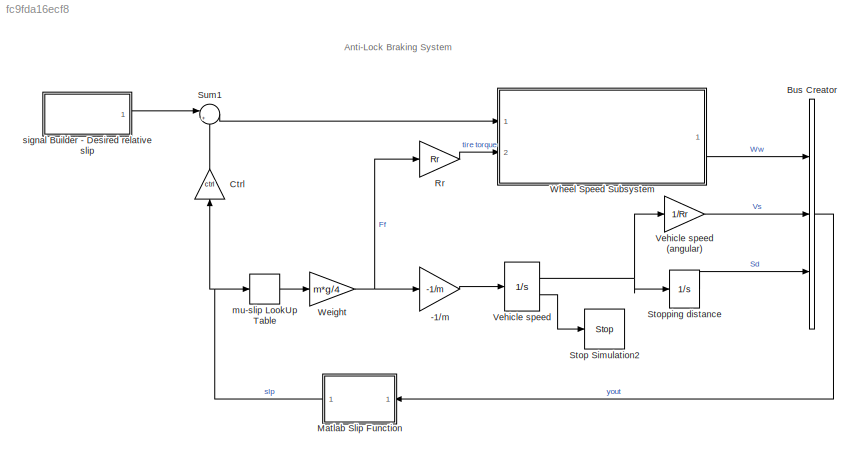
MODEL slx_fc9fda16ecf8
KIND model
CONFIG AbsTol = auto
CONFIG EnableMultiTasking = off
CONFIG FixedStep = auto
CONFIG InitFcn = g = 32.18;\nv0 = 88;\nRr = 15/12;\nKf = 1;\nm = 50;\nPBmax = 1500;\nTB = 0.01;\nI = 5;\nslip = (0:.05:1.0); \nmu = [0 .4 .8 .97 1.0 .98 .96 .94 .92 .9 .88 .855 .83 .81 .79 .77 .75 .73 .72 .71 .7];\nctrl = 1;
CONFIG MaxStep = auto
CONFIG MinStep = auto
CONFIG RelTol = 1e-3
CONFIG SampleTimeConstraint = Unconstrained
CONFIG SolverName = VariableStepAuto
CONFIG StartTime = 0.0
CONFIG StopTime = 25
BLOCK [Gain] -1//m
  Gain = -1/m
  OutDataTypeStr = Inherit: Same as input
  ParamDataTypeStr = Inherit: Same as input
  SaturateOnIntegerOverflow = on
BLOCK [BusCreator] Bus Creator
  DisplayOption = bar
  InheritFromInputs = on
  Inputs = 3
  Ports = [3, 1]
BLOCK [Gain] Ctrl
  Gain = ctrl
  NameLocation = left
  OutDataTypeStr = Inherit: Same as input
  ParamDataTypeStr = Inherit: Same as input
  SaturateOnIntegerOverflow = on
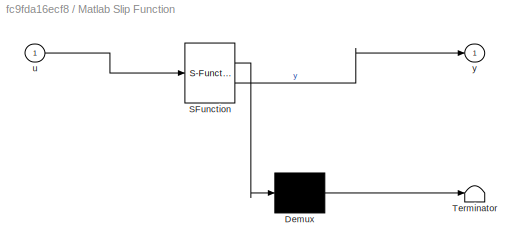
BLOCK [SubSystem] Matlab Slip Function
  ErrorFcn = Stateflow.Translate.translate
  NameLocation = top
  PermitHierarchicalResolution = ExplicitOnly
  Ports = [1, 1]
  RequestExecContextInheritance = off
  SFBlockType = MATLAB Function
  TreatAsAtomicUnit = on
BLOCK [Demux] Matlab Slip Function/ Demux 
  Outputs = 1
  Ports = [1, 1]
BLOCK [S-Function] Matlab Slip Function/ SFunction 
  EnableBusSupport = on
  FunctionName = sf_sfun
  PortCounts = [1 2]
  Ports = [1, 2]
  SFcnIsStateOwnerBlock = off
  SFunctionDeploymentMode = off
  Tag = Stateflow S-Function 2
BLOCK [Terminator] Matlab Slip Function/ Terminator 
BLOCK [Inport] Matlab Slip Function/u
BLOCK [Outport] Matlab Slip Function/y
BLOCK [Gain] Rr
  Gain = Rr
  OutDataTypeStr = Inherit: Same as input
  ParamDataTypeStr = Inherit: Same as input
  SaturateOnIntegerOverflow = on
BLOCK [Stop] Stop Simulation2
BLOCK [Integrator] Stopping distance
  LowerSaturationLimit = 0
  Ports = [1, 1]
  UpperSaturationLimit = 1000
BLOCK [Sum] Sum1
  InputSameDT = on
  Inputs = |+-
  OutDataTypeStr = Inherit: Same as first input
  Ports = [2, 1]
  SaturateOnIntegerOverflow = on
BLOCK [Integrator] Vehicle speed
  InitialCondition = v0
  LimitOutput = on
  LowerSaturationLimit = 0
  Ports = [1, 2]
  ShowSaturationPort = on
  UpperSaturationLimit = 1000
BLOCK [Gain] Vehicle speed (angular)
  Gain = 1/Rr
  OutDataTypeStr = Inherit: Same as input
  ParamDataTypeStr = Inherit: Same as input
  SaturateOnIntegerOverflow = on
BLOCK [Gain] Weight
  Gain = m*g/4
  OutDataTypeStr = Inherit: Same as input
  ParamDataTypeStr = Inherit: Same as input
  SaturateOnIntegerOverflow = on
BLOCK [ModelReference] Wheel Speed Subsystem
  ModelNameDialog = Wheel_Speed_Subsystem
  ModelReferenceVersion = 1.8
  Ports = [2, 1]
BLOCK [Lookup_n-D] mu-slip LookUp Table
  BreakpointsForDimension1 = [0:.05:1.0]
  InputPortMap = u0
  NumberOfTableDimensions = 1
  Ports = [1, 1]
  SaturateOnIntegerOverflow = on
  Table = [0 .4 .8 .97 1.0 .98 .96 .94 .92 .9 .88 .855 .83 .81 .79 .77 .75 .73 .72 .71 .7]
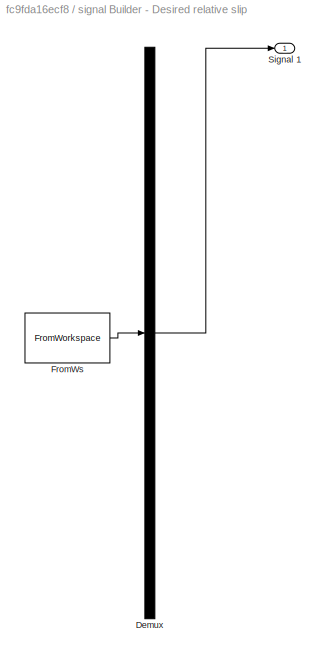
BLOCK [SubSystem] signal Builder - Desired relative slip
  ClipboardFcn = sigbuilder_block('clipboard');
  CloseFcn = sigbuilder_block('close');
  ContinueFcn = sigbuilder_block('continue');
  CopyFcn = sigbuilder_block('copy');
  DeleteFcn = sigbuilder_block('delete');
  LoadFcn = sigbuilder_block('load');
  MaskHideContents = on
  ModelCloseFcn = sigbuilder_block('modelClose');
  NameChangeFcn = sigbuilder_block('namechange');
  OpenFcn = sigbuilder_block('open',[387 76.5 544.5 355.5 ]);
  PauseFcn = sigbuilder_block('pause');
  Ports = [0, 1]
  PreSaveFcn = sigbuilder_block('preSave');
  RequestExecContextInheritance = off
  StartFcn = sigbuilder_block('start');
  StopFcn = sigbuilder_block('stop');
  Tag = STV Subsys
BLOCK [Demux] signal Builder - Desired relative slip/Demux
  DisplayOption = none
  Outputs = 1
  Ports = [1, 1]
  Tag = STV Demux
BLOCK [FromWorkspace] signal Builder - Desired relative slip/FromWs
  Tag = STV FromWs
  VariableName = tuvar
BLOCK [Outport] signal Builder - Desired relative slip/Signal 1
  Tag = STV Outport
ANNOTATION (root): Anti-Lock Braking System
LINE -1//m:1 -> Vehicle speed:1
LINE Bus Creator:1 -> Matlab Slip Function:1
LINE Ctrl:1 -> Sum1:2
NET Matlab Slip Function:1 -> Ctrl:1, mu-slip LookUp Table:1
LINE Rr:1 -> Wheel Speed Subsystem:2
LINE Stopping distance:1 -> Bus Creator:3
LINE Sum1:1 -> Wheel Speed Subsystem:1
LINE Vehicle speed (angular):1 -> Bus Creator:2
NET Vehicle speed:1 -> Stopping distance:1, Vehicle speed (angular):1
LINE Vehicle speed:2 -> Stop Simulation2:1
NET Weight:1 -> -1//m:1, Rr:1
LINE Wheel Speed Subsystem:1 -> Bus Creator:1
LINE mu-slip LookUp Table:1 -> Weight:1
LINE signal Builder - Desired relative slip:1 -> Sum1:1
note: NET lines group one-source signal fan-out (src -> all destinations, sorted); 1:1 wires keep LINE
CHART Matlab Slip Function states=1 transitions=1
  STATE_LABEL 'eML_blk_kernel()'
  STATE_LABEL 'SCRIPT:\nfunction y = relativeslip(u)\nu = 1.0 - u(1)/(u(2) + (u(2)==0)*eps);\ny = u;\n'
CHART  states=0 transitions=0
